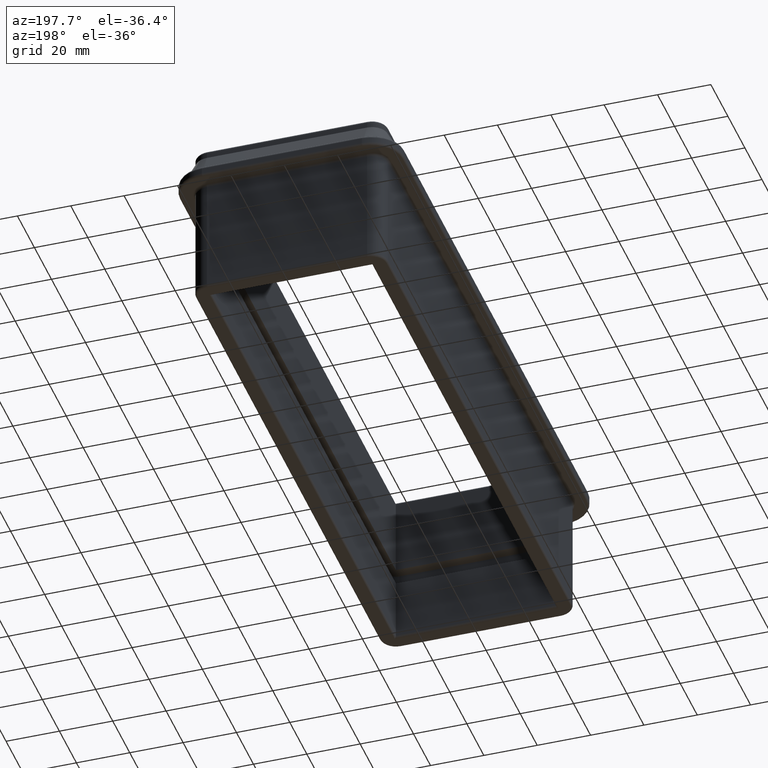
[diagram: clean part render]
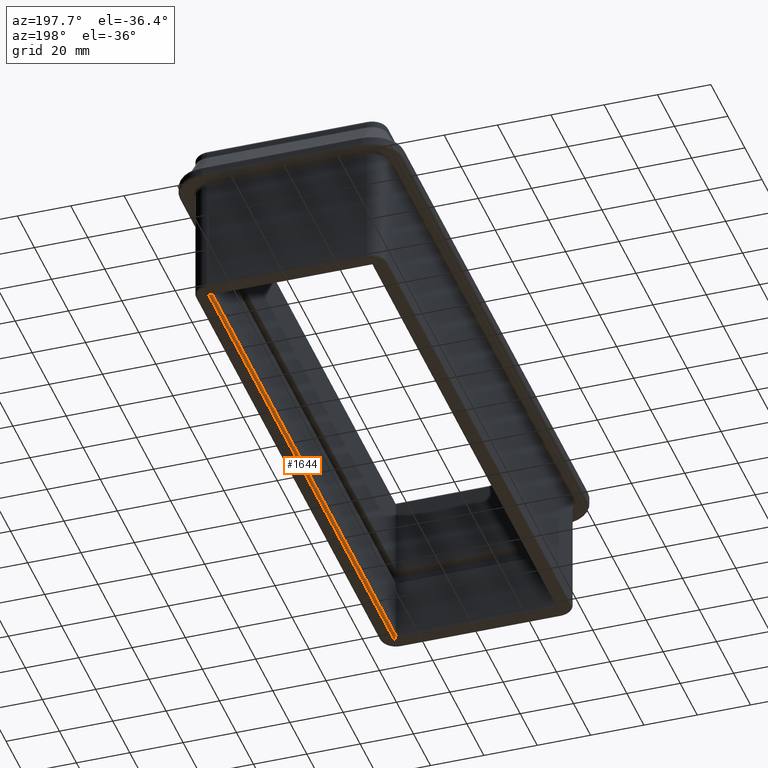
[diagram: same view with one face highlighted and labeled with its STEP entity id]
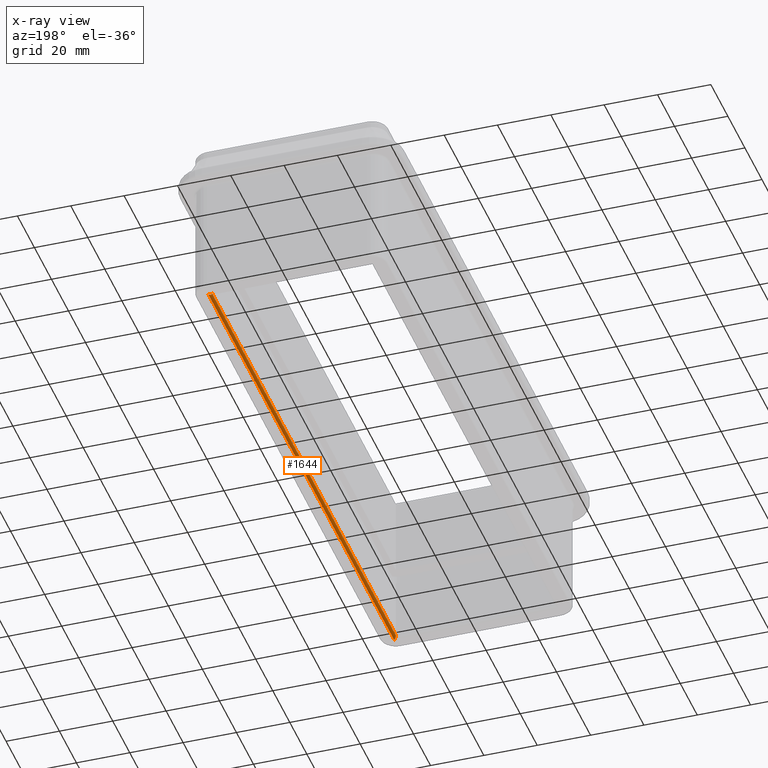
[diagram: x-ray of the same camera — body ghosted, the highlighted face saturated]
A machine part, auxiliary view. The second image highlights one B-rep face of the part: STEP entity #1644.
The next image is the same camera in x-ray: the body ghosted, the highlighted face saturated — about 0% of this face is hidden behind the body in this view.
In plain terms, the highlighted cylindrical surface (edge-blend (fillet) strip) has radius 1 mm, axis along (-0, 1, 0).
Its self-contained STEP definition (entity closure, byte-faithful):
#21=ELLIPSE('',#1861,1.41421356237302,1.);
#22=ELLIPSE('',#1862,1.41421356237303,1.);
#157=FACE_OUTER_BOUND('',#268,.T.);
#268=EDGE_LOOP('',(#1340,#1341,#1342,#1343));
#391=LINE('',#2835,#519);
#392=LINE('',#2839,#520);
#519=VECTOR('',#2319,10.);
#520=VECTOR('',#2322,10.);
#771=VERTEX_POINT('',#2833);
#772=VERTEX_POINT('',#2834);
#773=VERTEX_POINT('',#2836);
#774=VERTEX_POINT('',#2838);
#974=EDGE_CURVE('',#771,#772,#391,.T.);
#975=EDGE_CURVE('',#772,#773,#21,.T.);
#976=EDGE_CURVE('',#773,#774,#392,.T.);
#977=EDGE_CURVE('',#771,#774,#22,.T.);
#1340=ORIENTED_EDGE('',*,*,#974,.T.);
#1341=ORIENTED_EDGE('',*,*,#975,.T.);
#1342=ORIENTED_EDGE('',*,*,#976,.T.);
#1343=ORIENTED_EDGE('',*,*,#977,.F.);
#1560=CYLINDRICAL_SURFACE('',#1860,1.);
#1644=ADVANCED_FACE('',(#157),#1560,.T.);
#1860=AXIS2_PLACEMENT_3D('',#2832,#2317,#2318);
#1861=AXIS2_PLACEMENT_3D('',#2837,#2320,#2321);
#1862=AXIS2_PLACEMENT_3D('',#2840,#2323,#2324);
#2317=DIRECTION('center_axis',(-2.05596856412066E-16,1.,0.));
#2318=DIRECTION('ref_axis',(-0.707106781186548,0.,-0.707106781186548));
#2319=DIRECTION('',(-2.05596856412066E-16,1.,0.));
#2320=DIRECTION('center_axis',(0.707106781186508,-0.707106781186587,0.));
#2321=DIRECTION('ref_axis',(-0.707106781186587,-0.707106781186508,0.));
#2322=DIRECTION('',(2.05596856412066E-16,-1.,0.));
#2323=DIRECTION('center_axis',(-0.707106781186582,-0.707106781186513,0.));
#2324=DIRECTION('ref_axis',(-0.707106781186513,0.707106781186582,0.));
#2832=CARTESIAN_POINT('Origin',(30.9999999999999,-108.,-29.));
#2833=CARTESIAN_POINT('',(30.,-108.,-29.));
#2834=CARTESIAN_POINT('',(29.9999999999999,108.,-29.));
#2835=CARTESIAN_POINT('',(29.9999999999999,-108.,-29.));
#2836=CARTESIAN_POINT('',(30.9999999999999,109.,-30.));
#2837=CARTESIAN_POINT('Origin',(30.9999999999999,109.,-29.));
#2838=CARTESIAN_POINT('',(30.9999999999999,-109.,-30.));
#2839=CARTESIAN_POINT('',(30.9999999999999,-108.,-30.));
#2840=CARTESIAN_POINT('Origin',(30.9999999999999,-109.,-29.));